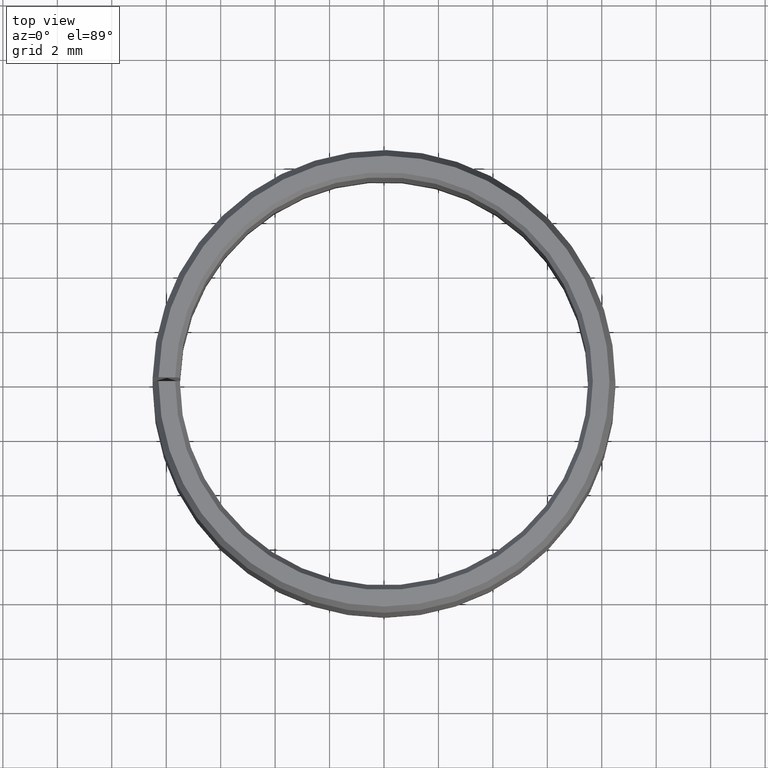
[diagram: clean part render]
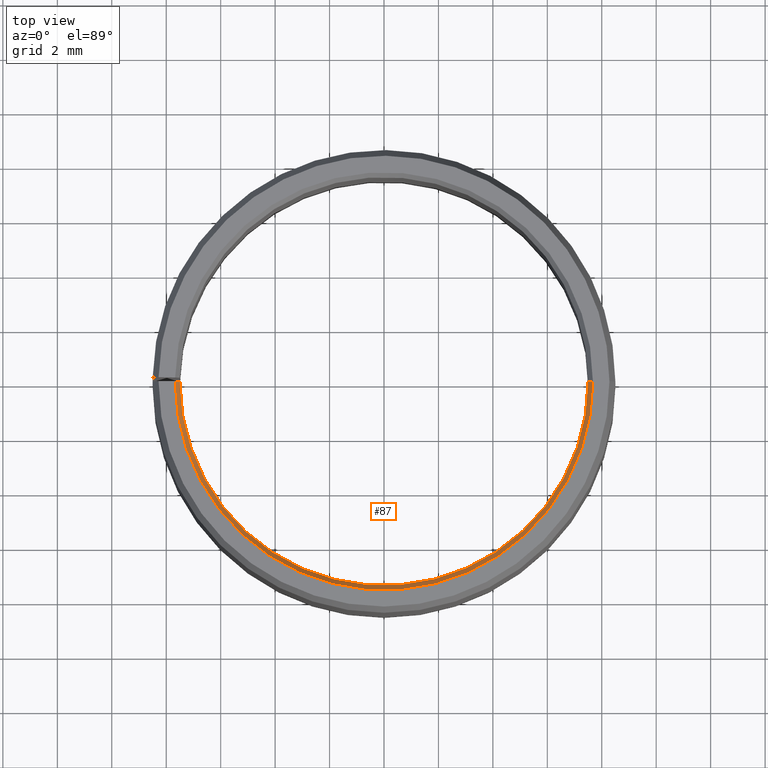
[diagram: same view with one face highlighted and labeled with its STEP entity id]
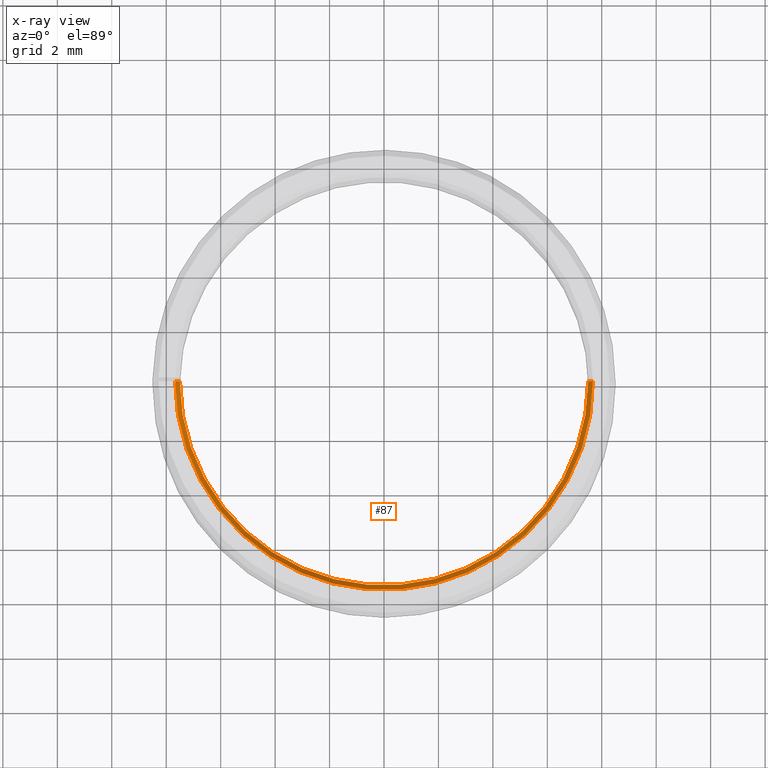
[diagram: x-ray of the same camera — body ghosted, the highlighted face saturated]
A machine part, top view. The second image highlights one B-rep face of the part: STEP entity #87.
The next image is the same camera in x-ray: the body ghosted, the highlighted face saturated — about 0% of this face is hidden behind the body in this view.
In plain terms, the highlighted conical surface has half-angle 30 deg.
Its self-contained STEP definition (entity closure, byte-faithful):
#87=ADVANCED_FACE('',(#116),#117,.F.);
#116=FACE_OUTER_BOUND('',#148,.T.);
#117=CONICAL_SURFACE('',#149,7.58660254037844,0.523598775598289);
#148=EDGE_LOOP('',(#244,#245,#246,#247));
#149=AXIS2_PLACEMENT_3D('',#248,#249,#250);
#244=ORIENTED_EDGE('',*,*,#284,.T.);
#245=ORIENTED_EDGE('',*,*,#315,.F.);
#246=ORIENTED_EDGE('',*,*,#316,.F.);
#247=ORIENTED_EDGE('',*,*,#313,.T.);
#248=CARTESIAN_POINT('',(6.85548500631418E-015,-7.26112259874141E-015,11.85));
#249=DIRECTION('',(5.48707263966375E-016,-6.09939603923743E-016,1.0));
#250=DIRECTION('',(-1.0,1.89882151931499E-015,5.48707263966376E-016));
#284=EDGE_CURVE('',#326,#318,#327,.T.);
#313=EDGE_CURVE('',#373,#326,#374,.T.);
#315=EDGE_CURVE('',#376,#318,#377,.T.);
#316=EDGE_CURVE('',#373,#376,#378,.T.);
#318=VERTEX_POINT('',#380);
#326=VERTEX_POINT('',#390);
#327=LINE('',#391,#392);
#373=VERTEX_POINT('',#454);
#374=CIRCLE('',#455,7.67320508075688);
#376=VERTEX_POINT('',#458);
#377=CIRCLE('',#459,7.5);
#378=LINE('',#460,#461);
#380=CARTESIAN_POINT('',(7.50000000000001,-2.23292781523757E-014,11.7));
#390=CARTESIAN_POINT('',(7.67320508075689,-2.28623570729232E-014,12.0));
#391=CARTESIAN_POINT('',(7.58660254037845,-2.25958176126495E-014,11.85));
#392=VECTOR('',#472,1.0);
#454=CARTESIAN_POINT('',(-7.67320508075688,7.7900744562242E-015,12.0));
#455=AXIS2_PLACEMENT_3D('',#525,#526,#527);
#458=CARTESIAN_POINT('',(-7.5,7.71332536066085E-015,11.7));
#459=AXIS2_PLACEMENT_3D('',#529,#530,#531);
#460=CARTESIAN_POINT('',(-7.67320508075688,7.7900744562242E-015,12.0));
#461=VECTOR('',#532,10.0);
#472=DIRECTION('',(-0.499999999999992,1.53886629138703E-015,-0.866025403784443));
#525=CARTESIAN_POINT('',(6.93779109590913E-015,-7.34342868833636E-015,12.0));
#526=DIRECTION('',(5.48707263966375E-016,-6.09939603923743E-016,1.0));
#527=DIRECTION('',(-1.0,1.89882151931499E-015,5.48707263966376E-016));
#529=CARTESIAN_POINT('',(6.77317891671922E-015,-7.17881650914645E-015,11.7));
#530=DIRECTION('',(5.48707263966375E-016,-6.09939603923743E-016,1.0));
#531=DIRECTION('',(-1.0,1.89882151931499E-015,5.48707263966376E-016));
#532=DIRECTION('',(0.499999999999991,-4.7421632982154E-016,-0.866025403784444));